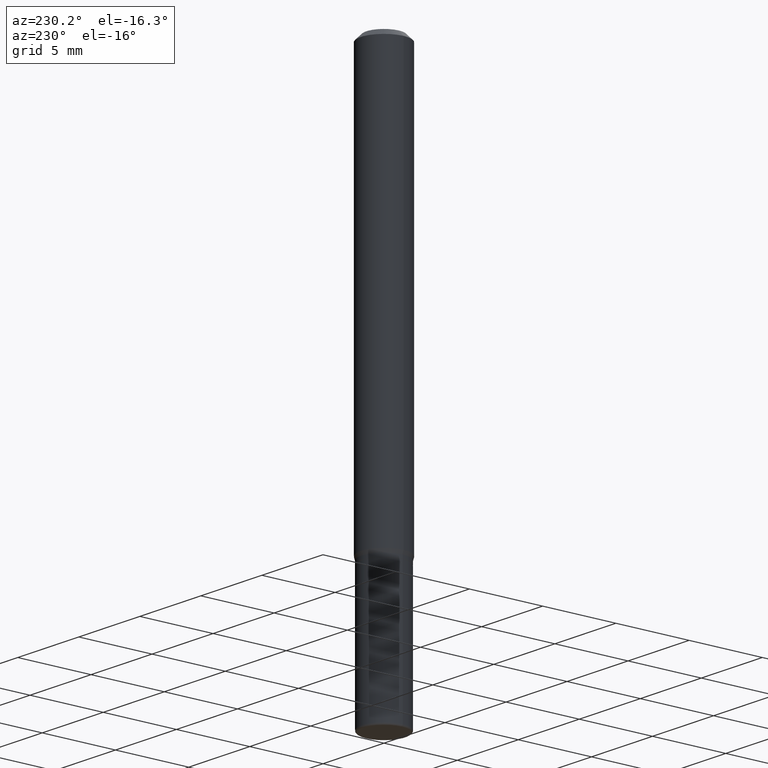
[diagram: clean part render]
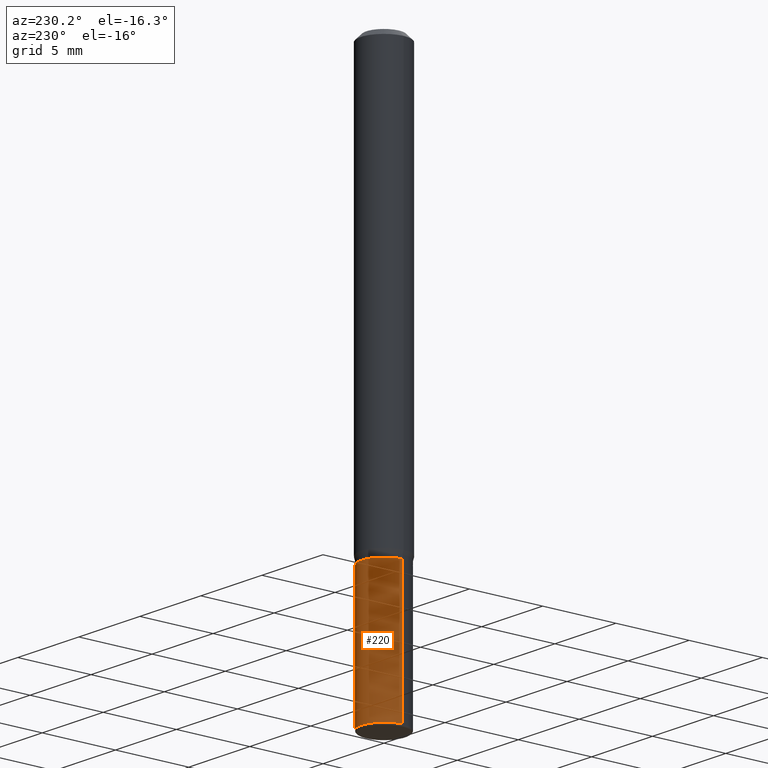
[diagram: same view with one face highlighted and labeled with its STEP entity id]
A machine part, auxiliary view. The second image highlights one B-rep face of the part: STEP entity #220.
In plain terms, the highlighted cylindrical surface (edge-blend (fillet) strip) has radius 1.524 mm, axis along (-0, 0, 1).
Its self-contained STEP definition (entity closure, byte-faithful):
#19 = AXIS2_PLACEMENT_3D ( 'NONE', #208, #365, #90 ) ;
#36 = DIRECTION ( 'NONE',  ( 1.000000000000000000, -6.982962677686268288E-15, 0.000000000000000000 ) ) ;
#44 = EDGE_CURVE ( 'NONE', #102, #347, #398, .T. ) ;
#45 = DIRECTION ( 'NONE',  ( -2.445468806185136877E-29, 3.491481338843145188E-15, 1.000000000000000000 ) ) ;
#61 = EDGE_CURVE ( 'NONE', #102, #200, #165, .T. ) ;
#74 = EDGE_CURVE ( 'NONE', #347, #107, #348, .T. ) ;
#78 = AXIS2_PLACEMENT_3D ( 'NONE', #114, #435, #36 ) ;
#90 = DIRECTION ( 'NONE',  ( 1.000000000000000000, -6.982962677686265922E-15, 4.876176775795935793E-29 ) ) ;
#98 = AXIS2_PLACEMENT_3D ( 'NONE', #473, #153, #116 ) ;
#102 = VERTEX_POINT ( 'NONE', #157 ) ;
#107 = VERTEX_POINT ( 'NONE', #129 ) ;
#114 = CARTESIAN_POINT ( 'NONE',  ( 2.787834439051055989E-29, -3.980288726281186698E-15, -1.140000000000000124 ) ) ;
#116 = DIRECTION ( 'NONE',  ( 1.000000000000000000, -6.982962677686263555E-15, 0.000000000000000000 ) ) ;
#125 = VECTOR ( 'NONE', #45, 39.37007874015748143 ) ;
#129 = CARTESIAN_POINT ( 'NONE',  ( -0.05999999999999999778, -4.173701022469784429E-15, -1.140000000000000124 ) ) ;
#133 = LINE ( 'NONE', #484, #125 ) ;
#136 = FACE_OUTER_BOUND ( 'NONE', #186, .T. ) ;
#153 = DIRECTION ( 'NONE',  ( -2.445468806185136597E-29, 3.491481338843145583E-15, 1.000000000000000000 ) ) ;
#157 = CARTESIAN_POINT ( 'NONE',  ( 0.06000000000000017819, -5.638742362231680564E-15, -1.495000000000000107 ) ) ;
#159 = ORIENTED_EDGE ( 'NONE', *, *, #61, .T. ) ;
#165 = CIRCLE ( 'NONE', #98, 0.06000000000000017819 ) ;
#186 = EDGE_LOOP ( 'NONE', ( #159, #305, #425, #203 ) ) ;
#193 = DIRECTION ( 'NONE',  ( -2.445468806185136877E-29, 3.491481338843145188E-15, 1.000000000000000000 ) ) ;
#200 = VERTEX_POINT ( 'NONE', #489 ) ;
#203 = ORIENTED_EDGE ( 'NONE', *, *, #44, .F. ) ;
#204 = EDGE_CURVE ( 'NONE', #200, #107, #133, .T. ) ;
#208 = CARTESIAN_POINT ( 'NONE',  ( 0.000000000000000000, 0.000000000000000000, 0.000000000000000000 ) ) ;
#220 = ADVANCED_FACE ( 'NONE', ( #136 ), #451, .T. ) ;
#305 = ORIENTED_EDGE ( 'NONE', *, *, #204, .T. ) ;
#326 = VECTOR ( 'NONE', #193, 39.37007874015748143 ) ;
#347 = VERTEX_POINT ( 'NONE', #428 ) ;
#348 = CIRCLE ( 'NONE', #78, 0.05999999999999999778 ) ;
#353 = CARTESIAN_POINT ( 'NONE',  ( 0.06000000000000009492, -4.189777606611766337E-16, 2.925706065477565960E-30 ) ) ;
#365 = DIRECTION ( 'NONE',  ( -2.445468806185136597E-29, 3.491481338843145583E-15, 1.000000000000000000 ) ) ;
#398 = LINE ( 'NONE', #353, #326 ) ;
#425 = ORIENTED_EDGE ( 'NONE', *, *, #74, .F. ) ;
#428 = CARTESIAN_POINT ( 'NONE',  ( 0.05999999999999999778, -4.399266486942362543E-15, -1.140000000000000124 ) ) ;
#435 = DIRECTION ( 'NONE',  ( -2.445468806185136597E-29, 3.491481338843145583E-15, 1.000000000000000000 ) ) ;
#451 = CYLINDRICAL_SURFACE ( 'NONE', #19, 0.06000000000000009492 ) ;
#473 = CARTESIAN_POINT ( 'NONE',  ( 3.655975865246779122E-29, -5.219764601570503141E-15, -1.495000000000000107 ) ) ;
#484 = CARTESIAN_POINT ( 'NONE',  ( -0.06000000000000009492, 4.263256414560607860E-16, -2.951361054152947967E-30 ) ) ;
#489 = CARTESIAN_POINT ( 'NONE',  ( -0.06000000000000017125, -4.173701022469782852E-15, -1.495000000000000107 ) ) ;